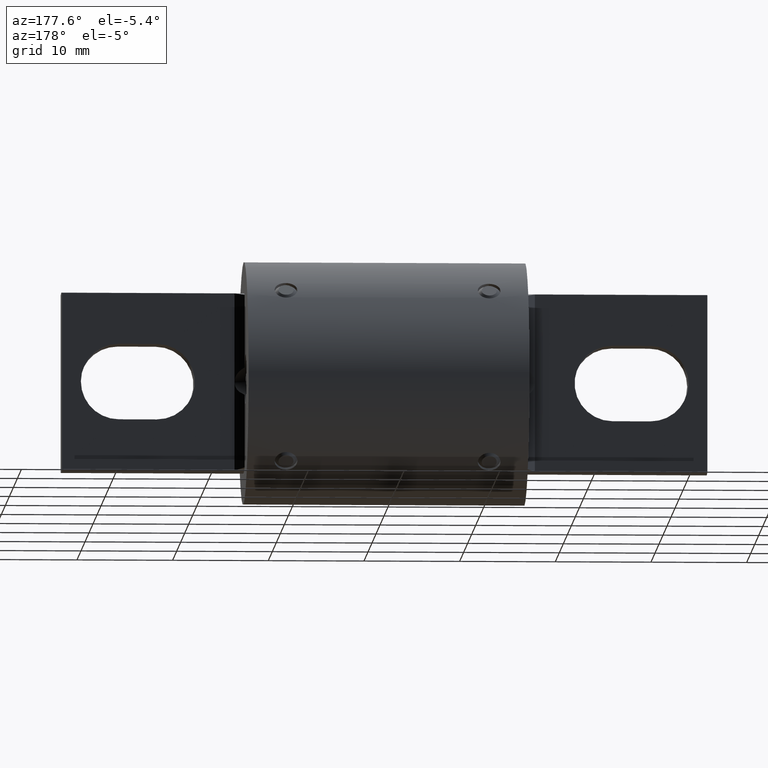
[diagram: clean part render]
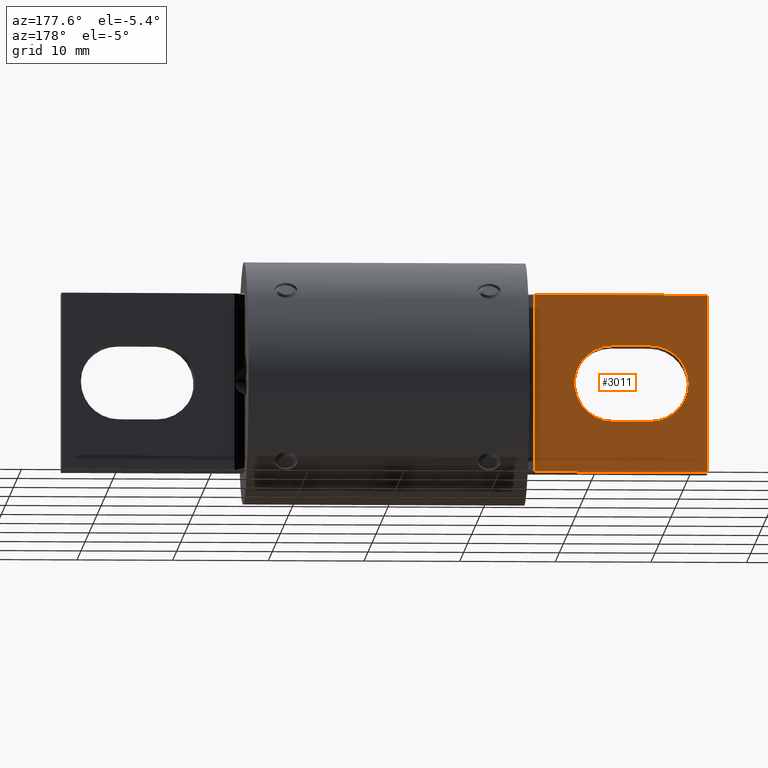
[diagram: same view with one face highlighted and labeled with its STEP entity id]
A machine part, auxiliary view. The second image highlights one B-rep face of the part: STEP entity #3011.
In plain terms, the highlighted planar face has unit normal (0, 1, -0).
Its self-contained STEP definition (entity closure, byte-faithful):
#25 = ORIENTED_EDGE ( 'NONE', *, *, #1516, .T. ) ;
#106 = CARTESIAN_POINT ( 'NONE',  ( -0.9375999999999995400, 0.06249999999999972900, 0.1560000000000008000 ) ) ;
#173 = CARTESIAN_POINT ( 'NONE',  ( -0.5780999999999992800, 0.06250000000000004200, 0.3656976209930822300 ) ) ;
#256 = VECTOR ( 'NONE', #4382, 39.37007874015748100 ) ;
#258 = DIRECTION ( 'NONE',  ( 1.302295984605391000E-016, 1.000000000000000000, 1.248497589561281400E-016 ) ) ;
#264 = ORIENTED_EDGE ( 'NONE', *, *, #1072, .T. ) ;
#295 = VERTEX_POINT ( 'NONE', #3227 ) ;
#335 = DIRECTION ( 'NONE',  ( -1.639038160135599900E-015, -5.621007375306867600E-016, -1.000000000000000000 ) ) ;
#342 = VERTEX_POINT ( 'NONE', #106 ) ;
#391 = LINE ( 'NONE', #173, #256 ) ;
#476 = DIRECTION ( 'NONE',  ( 1.000000000000000000, 2.096245319270472800E-016, -2.789951488502596100E-015 ) ) ;
#506 = AXIS2_PLACEMENT_3D ( 'NONE', #1292, #258, #4465 ) ;
#531 = ORIENTED_EDGE ( 'NONE', *, *, #772, .T. ) ;
#539 = ORIENTED_EDGE ( 'NONE', *, *, #3007, .F. ) ;
#550 = EDGE_LOOP ( 'NONE', ( #4211, #25, #264, #531, #4910 ) ) ;
#570 = DIRECTION ( 'NONE',  ( 1.302295984605391000E-016, 1.000000000000000000, 1.248497589561281400E-016 ) ) ;
#657 = ORIENTED_EDGE ( 'NONE', *, *, #4760, .F. ) ;
#687 = VECTOR ( 'NONE', #2191, 39.37007874015748100 ) ;
#772 = EDGE_CURVE ( 'NONE', #2469, #3318, #1971, .T. ) ;
#844 = VERTEX_POINT ( 'NONE', #2333 ) ;
#859 = CARTESIAN_POINT ( 'NONE',  ( -0.6181000000000014300, 0.06249999999999968100, -0.3656976209930817300 ) ) ;
#1015 = ORIENTED_EDGE ( 'NONE', *, *, #3598, .F. ) ;
#1052 = CIRCLE ( 'NONE', #3767, 0.1559999999999999200 ) ;
#1072 = EDGE_CURVE ( 'NONE', #1559, #2469, #3692, .T. ) ;
#1120 = CIRCLE ( 'NONE', #3364, 0.1560000000000000000 ) ;
#1195 = CARTESIAN_POINT ( 'NONE',  ( -0.6181000000000014300, 0.06249999999999968100, -0.3656976209930817300 ) ) ;
#1275 = DIRECTION ( 'NONE',  ( -1.639038160135599900E-015, -5.621007375306867600E-016, -1.000000000000000000 ) ) ;
#1292 = CARTESIAN_POINT ( 'NONE',  ( -1.094099999999999900, 0.06249999999999975000, 1.286591941939980700E-015 ) ) ;
#1319 = VERTEX_POINT ( 'NONE', #5109 ) ;
#1335 = LINE ( 'NONE', #4546, #2310 ) ;
#1398 = AXIS2_PLACEMENT_3D ( 'NONE', #3776, #4500, #2433 ) ;
#1516 = EDGE_CURVE ( 'NONE', #2991, #1559, #5311, .T. ) ;
#1544 = EDGE_LOOP ( 'NONE', ( #539, #657, #1015, #3293, #2933 ) ) ;
#1559 = VERTEX_POINT ( 'NONE', #3913 ) ;
#1608 = EDGE_CURVE ( 'NONE', #2193, #295, #5000, .T. ) ;
#1753 = LINE ( 'NONE', #2837, #3349 ) ;
#1889 = FACE_OUTER_BOUND ( 'NONE', #550, .T. ) ;
#1971 = LINE ( 'NONE', #4869, #4143 ) ;
#2038 = DIRECTION ( 'NONE',  ( -1.639038160135599900E-015, -5.621007375306867600E-016, -1.000000000000000000 ) ) ;
#2043 = PLANE ( 'NONE',  #1398 ) ;
#2191 = DIRECTION ( 'NONE',  ( -1.000000000000000000, -2.096245319270477300E-016, 1.917156602347880000E-015 ) ) ;
#2193 = VERTEX_POINT ( 'NONE', #4168 ) ;
#2310 = VECTOR ( 'NONE', #335, 39.37007874015748100 ) ;
#2333 = CARTESIAN_POINT ( 'NONE',  ( -1.328100000000000500, 0.06249999999999989600, 0.3656976209930839500 ) ) ;
#2433 = DIRECTION ( 'NONE',  ( -1.639038160135599900E-015, -5.621007375306867600E-016, -1.000000000000000000 ) ) ;
#2469 = VERTEX_POINT ( 'NONE', #3040 ) ;
#2702 = VECTOR ( 'NONE', #1275, 39.37007874015748100 ) ;
#2837 = CARTESIAN_POINT ( 'NONE',  ( -0.5780999999999998400, 0.06249999999999992400, 0.1559999999999999200 ) ) ;
#2883 = CARTESIAN_POINT ( 'NONE',  ( -0.6180999999999998700, 0.06250000000000006900, 0.3656976209930826200 ) ) ;
#2933 = ORIENTED_EDGE ( 'NONE', *, *, #1608, .F. ) ;
#2939 = VECTOR ( 'NONE', #2038, 39.37007874015748100 ) ;
#2991 = VERTEX_POINT ( 'NONE', #2883 ) ;
#3007 = EDGE_CURVE ( 'NONE', #342, #2193, #1052, .T. ) ;
#3011 = ADVANCED_FACE ( 'NONE', ( #5368, #1889 ), #2043, .T. ) ;
#3040 = CARTESIAN_POINT ( 'NONE',  ( -0.6181000000000012000, 0.06249999999999959800, -0.3656976209930817300 ) ) ;
#3085 = EDGE_CURVE ( 'NONE', #295, #5374, #1120, .T. ) ;
#3094 = DIRECTION ( 'NONE',  ( -1.751184611323245700E-015, -5.472451910385142300E-016, -1.000000000000000000 ) ) ;
#3154 = EDGE_CURVE ( 'NONE', #2991, #844, #391, .T. ) ;
#3227 = CARTESIAN_POINT ( 'NONE',  ( -1.094100000000000300, 0.06249999999999958400, -0.1559999999999987500 ) ) ;
#3248 = CARTESIAN_POINT ( 'NONE',  ( -0.9375999999999998800, 0.06249999999999975700, 9.332437443144138800E-016 ) ) ;
#3293 = ORIENTED_EDGE ( 'NONE', *, *, #3085, .F. ) ;
#3318 = VERTEX_POINT ( 'NONE', #5113 ) ;
#3349 = VECTOR ( 'NONE', #476, 39.37007874015748100 ) ;
#3364 = AXIS2_PLACEMENT_3D ( 'NONE', #3519, #570, #3094 ) ;
#3519 = CARTESIAN_POINT ( 'NONE',  ( -1.094099999999999900, 0.06249999999999975000, 1.286591941939980700E-015 ) ) ;
#3598 = EDGE_CURVE ( 'NONE', #5374, #1319, #3769, .T. ) ;
#3664 = DIRECTION ( 'NONE',  ( -1.751184611323246700E-015, -5.472451910385145200E-016, -1.000000000000000000 ) ) ;
#3692 = LINE ( 'NONE', #859, #2702 ) ;
#3767 = AXIS2_PLACEMENT_3D ( 'NONE', #3248, #4441, #3664 ) ;
#3769 = CIRCLE ( 'NONE', #506, 0.1560000000000000000 ) ;
#3776 = CARTESIAN_POINT ( 'NONE',  ( -0.5780999999999992800, 0.06250000000000004200, 0.3656976209930822300 ) ) ;
#3909 = CARTESIAN_POINT ( 'NONE',  ( -0.5781000000000001700, 0.06249999999999977100, -0.1559999999999996400 ) ) ;
#3913 = CARTESIAN_POINT ( 'NONE',  ( -0.6181000000000007600, 0.06249999999999988200, 1.679423787758138100E-016 ) ) ;
#4143 = VECTOR ( 'NONE', #5289, 39.37007874015748100 ) ;
#4168 = CARTESIAN_POINT ( 'NONE',  ( -0.9376000000000001000, 0.06249999999999971600, -0.1559999999999990300 ) ) ;
#4211 = ORIENTED_EDGE ( 'NONE', *, *, #3154, .F. ) ;
#4382 = DIRECTION ( 'NONE',  ( -1.000000000000000000, -2.096245319270477000E-016, 2.135355323886558800E-015 ) ) ;
#4441 = DIRECTION ( 'NONE',  ( 1.302295984605391000E-016, 1.000000000000000000, 1.248497589561281400E-016 ) ) ;
#4465 = DIRECTION ( 'NONE',  ( -1.751184611323245700E-015, -5.472451910385142300E-016, -1.000000000000000000 ) ) ;
#4500 = DIRECTION ( 'NONE',  ( 1.302295984605379900E-016, 1.000000000000000000, -5.621007375306869500E-016 ) ) ;
#4546 = CARTESIAN_POINT ( 'NONE',  ( -1.328100000000000500, 0.06249999999999989600, 0.3656976209930839500 ) ) ;
#4760 = EDGE_CURVE ( 'NONE', #1319, #342, #1753, .T. ) ;
#4796 = EDGE_CURVE ( 'NONE', #844, #3318, #1335, .T. ) ;
#4869 = CARTESIAN_POINT ( 'NONE',  ( -0.5781000000000006100, 0.06249999999999956300, -0.3656976209930821700 ) ) ;
#4910 = ORIENTED_EDGE ( 'NONE', *, *, #4796, .F. ) ;
#5000 = LINE ( 'NONE', #3909, #687 ) ;
#5109 = CARTESIAN_POINT ( 'NONE',  ( -1.094099999999999600, 0.06249999999999958400, 0.1560000000000012200 ) ) ;
#5113 = CARTESIAN_POINT ( 'NONE',  ( -1.328100000000000700, 0.06249999999999950700, -0.3656976209930804500 ) ) ;
#5289 = DIRECTION ( 'NONE',  ( -1.000000000000000000, -2.096245319270477000E-016, 2.135355323886558800E-015 ) ) ;
#5311 = LINE ( 'NONE', #1195, #2939 ) ;
#5326 = CARTESIAN_POINT ( 'NONE',  ( -1.250099999999999800, 0.06249999999999977100, 1.595854924671602500E-015 ) ) ;
#5368 = FACE_BOUND ( 'NONE', #1544, .T. ) ;
#5374 = VERTEX_POINT ( 'NONE', #5326 ) ;